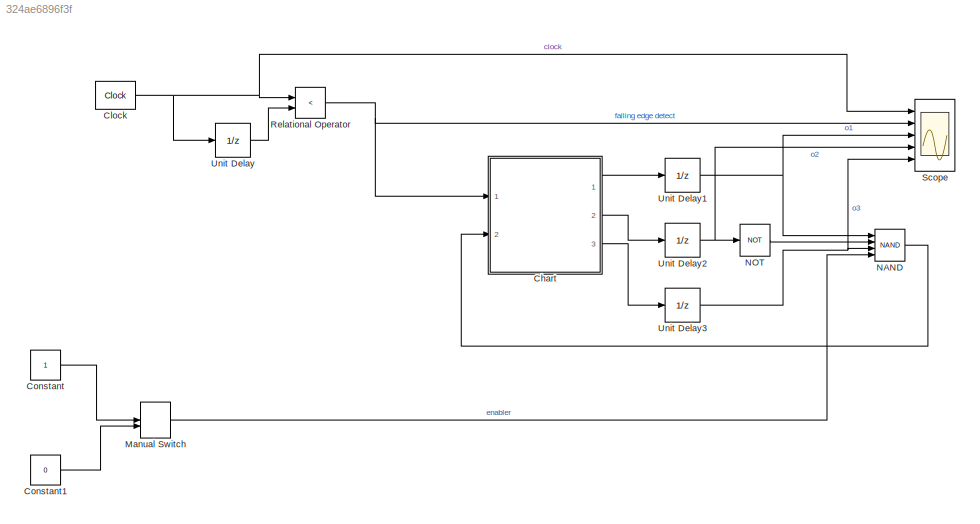
MODEL slx_324ae6896f3f
KIND model
CONFIG AbsTol = auto
CONFIG EnableMultiTasking = off
CONFIG FixedStep = auto
CONFIG MaxStep = 0.5
CONFIG MinStep = auto
CONFIG RelTol = 1e-3
CONFIG SampleTimeConstraint = Unconstrained
CONFIG Solver = VariableStepAuto
CONFIG SolverName = VariableStepAuto
CONFIG StartTime = 0.0
CONFIG StopTime = 10.0
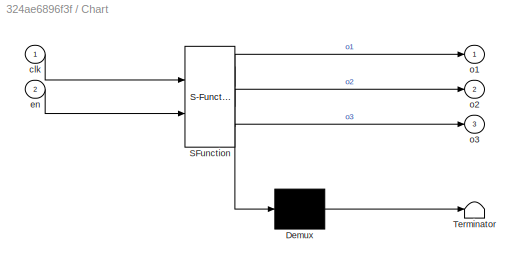
BLOCK [SubSystem] Chart
  ErrorFcn = Stateflow.Translate.translate
  PermitHierarchicalResolution = ExplicitOnly
  Ports = [2, 3]
  RequestExecContextInheritance = off
  SFBlockType = Chart
  TreatAsAtomicUnit = on
BLOCK [Demux] Chart/ Demux 
  Outputs = 1
  Ports = [1, 1]
BLOCK [S-Function] Chart/ SFunction 
  EnableBusSupport = on
  FunctionName = sf_sfun
  PortCounts = [2 4]
  Ports = [2, 4]
  SFcnIsStateOwnerBlock = off
  SFunctionDeploymentMode = off
  Tag = Stateflow S-Function 3
BLOCK [Terminator] Chart/ Terminator 
BLOCK [Inport] Chart/clk
BLOCK [Inport] Chart/en
  Port = 2
BLOCK [Outport] Chart/o1
BLOCK [Outport] Chart/o2
  Port = 2
BLOCK [Outport] Chart/o3
  Port = 3
BLOCK [Reference] Clock  REF=simulink_extras/Flip Flops/Clock
  Ports = [0, 1]
  SourceBlock = simulink_extras/Flip Flops/Clock
  SourceProductBaseCode = SL
  SourceType = Digital clock
BLOCK [Constant] Constant
BLOCK [Constant] Constant1
  Value = 0
BLOCK [ManualSwitch] Manual Switch
BLOCK [Logic] NAND
  AllPortsSameDT = off
  IconShape = distinctive
  Inputs = 4
  Operator = NAND
  OutDataTypeStr = boolean
  Ports = [4, 1]
BLOCK [Logic] NOT
  AllPortsSameDT = off
  IconShape = distinctive
  Operator = NOT
  OutDataTypeStr = boolean
  Ports = [1, 1]
BLOCK [RelationalOperator] Relational Operator
  InputSameDT = off
  Operator = <
  OutDataTypeStr = boolean
  Ports = [2, 1]
  RndMeth = Simplest
BLOCK [Scope] Scope
  Floating = off
  NumInputPorts = 5
  Ports = [5]
  ScopeSpecificationString = Simulink.scopes.TimeScopeBlockCfg('CurrentConfiguration', extmgr.ConfigurationSet(extmgr.Configuration('Core','General UI',true),extmgr.Configuration('Core','Source UI',true),extmgr.Configuration('Sources','WiredSimulink',true),extmgr.Configuration('Visuals','Time Domain',true,'SerializedDisplays',{struct('MinYLimReal','-0.125','MaxYLimReal','1.125','YLabelReal','','MinYLimMag','0.00000','MaxYLimM...<+6082ch>
BLOCK [UnitDelay] Unit Delay
  HasFrameUpgradeWarning = on
  SampleTime = -1
BLOCK [UnitDelay] Unit Delay1
  HasFrameUpgradeWarning = on
  SampleTime = -1
BLOCK [UnitDelay] Unit Delay2
  HasFrameUpgradeWarning = on
  SampleTime = -1
BLOCK [UnitDelay] Unit Delay3
  HasFrameUpgradeWarning = on
  SampleTime = -1
LINE Chart:1 -> Unit Delay1:1
LINE Chart:2 -> Unit Delay2:1
LINE Chart:3 -> Unit Delay3:1
NET Clock:1 -> Relational Operator:1, Scope:1, Unit Delay:1
LINE Constant1:1 -> Manual Switch:2
LINE Constant:1 -> Manual Switch:1
LINE Manual Switch:1 -> NAND:4
LINE NAND:1 -> Chart:2
LINE NOT:1 -> NAND:2
NET Relational Operator:1 -> Chart:1, Scope:2
NET Unit Delay1:1 -> NAND:1, Scope:3
NET Unit Delay2:1 -> NOT:1, Scope:4
NET Unit Delay3:1 -> NAND:3, Scope:5
LINE Unit Delay:1 -> Relational Operator:2
note: NET lines group one-source signal fan-out (src -> all destinations, sorted); 1:1 wires keep LINE
CHART Chart states=8 transitions=11
  STATE_LABEL 'state1\nen: o1 = 0;\n o2 = 0;\n o3 = 0;'
  STATE_LABEL 'state2\nen: o1 = 1;\n o2 = 0;\n o3 = 0;'
  STATE_LABEL 'state8\nen: o1 = 1;\n o2 = 1;\n o3 = 1;'
  STATE_LABEL 'state3\nen: o1 = 0;\n o2 = 1;\n o3 = 0;'
  STATE_LABEL 'state7\nen: o1 = 0;\n o2 = 1;\n o3 = 1;'
  STATE_LABEL 'state4\nen: o1 = 1;\n o2 = 1;\n o3 = 0;'
  STATE_LABEL 'state5\nen: o1 = 0;\n o2 = 0;\n o3 = 1;'
  STATE_LABEL 'state6\nen: o1 = 1;\n o2 = 0;\n o3 = 1;'
CHART  states=0 transitions=0
